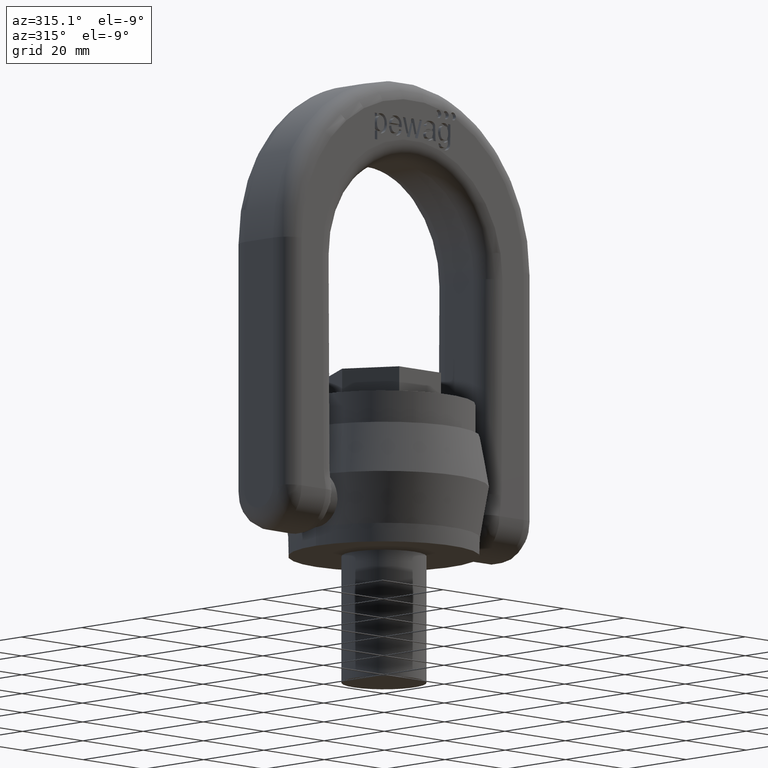
[diagram: clean part render]
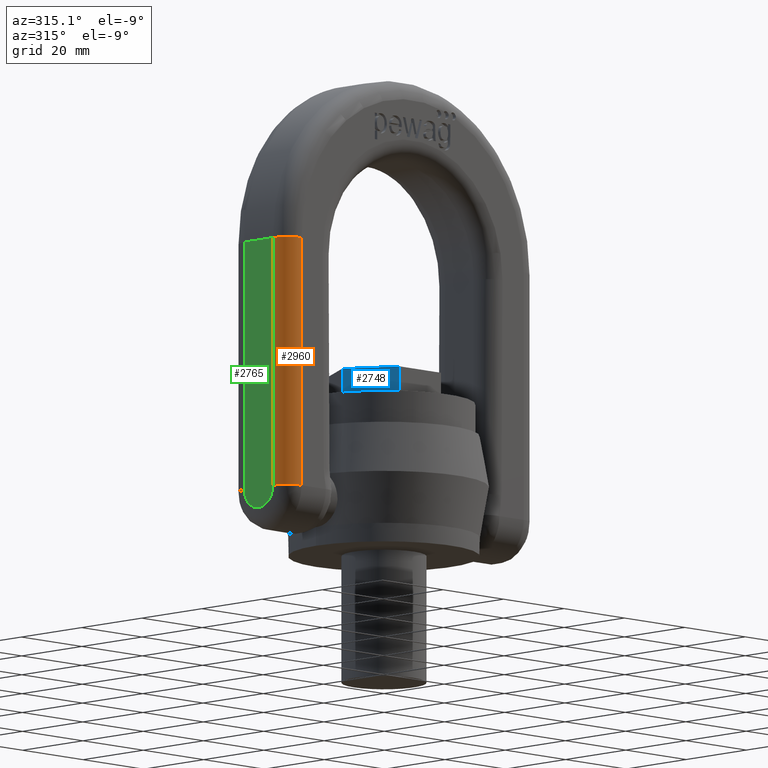
[diagram: same view with three faces highlighted in distinct colors, each labeled with its STEP entity id]
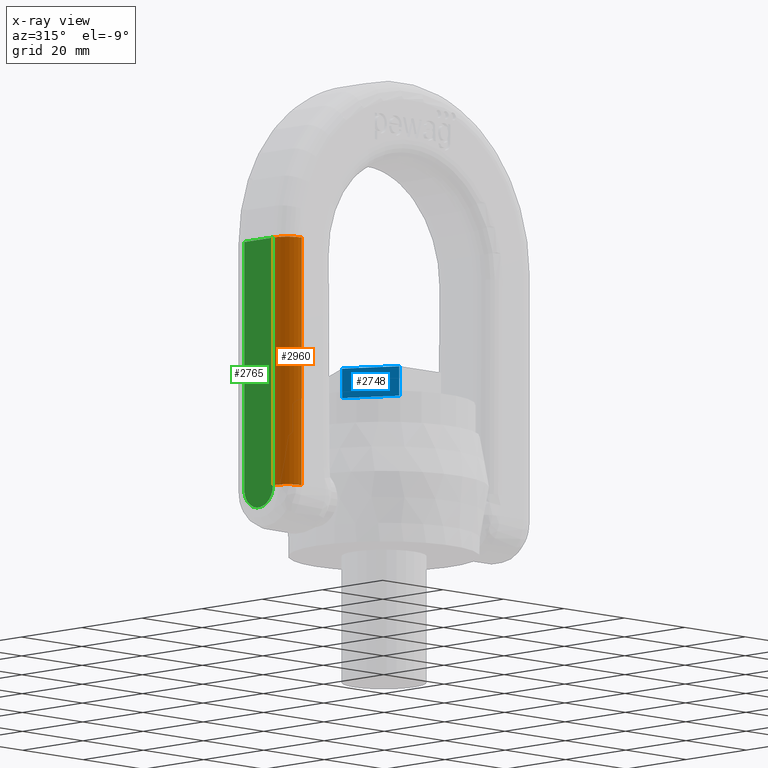
[diagram: x-ray of the same camera — body ghosted, the three highlighted faces saturated]
A machine part, auxiliary view with three faces highlighted in distinct colors.
The next image is the same camera in x-ray (body ghosted, the three faces saturated) — at least one of them is partly hidden behind the body in this view.
Their STEP definitions:

[orange] entity #2960 — the highlighted cylindrical surface (edge-blend (fillet) strip) has radius 4.75 mm, axis along (-0, 0, -1).
#1812=LINE('',#6947,#2094);
#1833=LINE('',#7054,#2115);
#2094=VECTOR('',#5951,1.);
#2115=VECTOR('',#5976,1.);
#2606=FACE_OUTER_BOUND('',#3320,.T.);
#2960=ADVANCED_FACE('',(#2606),#2993,.T.);
#2993=CYLINDRICAL_SURFACE('',#5779,4.75);
#3320=EDGE_LOOP('',(#4459,#4460,#4461,#4462));
#4459=ORIENTED_EDGE('',*,*,#5526,.T.);
#4460=ORIENTED_EDGE('',*,*,#5045,.F.);
#4461=ORIENTED_EDGE('',*,*,#5527,.F.);
#4462=ORIENTED_EDGE('',*,*,#5077,.F.);
#4582=VERTEX_POINT('',#6727);
#4631=VERTEX_POINT('',#6946);
#4660=VERTEX_POINT('',#7048);
#4663=VERTEX_POINT('',#7053);
#5045=EDGE_CURVE('',#4631,#4582,#1812,.T.);
#5077=EDGE_CURVE('',#4663,#4660,#1833,.T.);
#5526=EDGE_CURVE('',#4663,#4582,#5582,.T.);
#5527=EDGE_CURVE('',#4660,#4631,#5583,.T.);
#5582=CIRCLE('',#5777,4.75);
#5583=CIRCLE('',#5778,4.75);
#5777=AXIS2_PLACEMENT_3D('',#9436,#6532,#6533);
#5778=AXIS2_PLACEMENT_3D('',#9453,#6534,#6535);
#5779=AXIS2_PLACEMENT_3D('',#9454,#6536,#6537);
#5951=DIRECTION('',(-4.06377388222971E-16,0.,-1.));
#5976=DIRECTION('',(4.06377388222971E-16,0.,1.));
#6532=DIRECTION('',(3.65204942310907E-16,3.65204942310906E-16,1.));
#6533=DIRECTION('',(0.999999999999999,0.,-3.65204942310907E-16));
#6534=DIRECTION('',(0.,0.,1.));
#6535=DIRECTION('',(0.999999999999999,0.,0.));
#6536=DIRECTION('',(-4.06377388222971E-16,0.,-1.));
#6537=DIRECTION('',(-0.999999999999999,0.,0.));
#6727=CARTESIAN_POINT('',(-36.75,-9.5,11.7000000000001));
#6946=CARTESIAN_POINT('',(-36.75,-9.5,70.5));
#6947=CARTESIAN_POINT('',(-36.75,-9.5,68.));
#7048=CARTESIAN_POINT('',(-41.5,-4.75,70.5));
#7053=CARTESIAN_POINT('',(-41.5,-4.75,11.7000000000001));
#7054=CARTESIAN_POINT('',(-41.5,-4.75,70.5));
#9436=CARTESIAN_POINT('',(-36.75,-4.74999999999991,11.7));
#9453=CARTESIAN_POINT('',(-36.75,-4.75,70.5));
#9454=CARTESIAN_POINT('',(-36.75,-4.75,68.));

[blue] entity #2748 — the highlighted planar face has unit normal (0.866, 0.5, 0).
#1755=LINE('',#6619,#2037);
#1761=LINE('',#6632,#2043);
#1762=LINE('',#6634,#2044);
#1763=LINE('',#6636,#2045);
#2037=VECTOR('',#5842,1.);
#2043=VECTOR('',#5850,1.);
#2044=VECTOR('',#5851,1.);
#2045=VECTOR('',#5852,1.);
#2412=FACE_OUTER_BOUND('',#3080,.T.);
#2629=PLANE('',#5619);
#2748=ADVANCED_FACE('',(#2412),#2629,.F.);
#3080=EDGE_LOOP('',(#3361,#3362,#3363,#3364));
#3361=ORIENTED_EDGE('',*,*,#4951,.T.);
#3362=ORIENTED_EDGE('',*,*,#4957,.F.);
#3363=ORIENTED_EDGE('',*,*,#4958,.F.);
#3364=ORIENTED_EDGE('',*,*,#4959,.T.);
#4551=VERTEX_POINT('',#6620);
#4552=VERTEX_POINT('',#6621);
#4557=VERTEX_POINT('',#6633);
#4558=VERTEX_POINT('',#6635);
#4951=EDGE_CURVE('',#4551,#4552,#1755,.T.);
#4957=EDGE_CURVE('',#4557,#4552,#1761,.T.);
#4958=EDGE_CURVE('',#4558,#4557,#1762,.T.);
#4959=EDGE_CURVE('',#4558,#4551,#1763,.T.);
#5619=AXIS2_PLACEMENT_3D('',#6637,#5853,#5854);
#5842=DIRECTION('',(0.5,-0.866025403784439,0.));
#5850=DIRECTION('',(0.,0.,-1.));
#5851=DIRECTION('',(0.5,-0.866025403784439,0.));
#5852=DIRECTION('',(0.,0.,-1.));
#5853=DIRECTION('',(0.866025403784439,0.5,0.));
#5854=DIRECTION('',(-0.5,0.866025403784439,0.));
#6619=CARTESIAN_POINT('',(-13.856406460551,0.,36.));
#6620=CARTESIAN_POINT('',(-13.856406460551,0.,36.));
#6621=CARTESIAN_POINT('',(-6.92820323027551,-12.,36.));
#6632=CARTESIAN_POINT('',(-6.92820323027551,-12.,43.));
#6633=CARTESIAN_POINT('',(-6.92820323027551,-12.,43.));
#6634=CARTESIAN_POINT('',(-13.856406460551,0.,43.));
#6635=CARTESIAN_POINT('',(-13.856406460551,0.,43.));
#6636=CARTESIAN_POINT('',(-13.856406460551,0.,43.));
#6637=CARTESIAN_POINT('',(-13.856406460551,0.,43.));

[green] entity #2765 — the highlighted planar face has unit normal (1, 0, -0).
#1831=LINE('',#7047,#2113);
#1832=LINE('',#7050,#2114);
#1833=LINE('',#7054,#2115);
#2113=VECTOR('',#5972,1.);
#2114=VECTOR('',#5973,1.);
#2115=VECTOR('',#5976,1.);
#2427=FACE_OUTER_BOUND('',#3104,.T.);
#2644=PLANE('',#5646);
#2765=ADVANCED_FACE('',(#2427),#2644,.F.);
#3104=EDGE_LOOP('',(#3516,#3517,#3518,#3519));
#3516=ORIENTED_EDGE('',*,*,#5074,.T.);
#3517=ORIENTED_EDGE('',*,*,#5075,.T.);
#3518=ORIENTED_EDGE('',*,*,#5076,.T.);
#3519=ORIENTED_EDGE('',*,*,#5077,.T.);
#4660=VERTEX_POINT('',#7048);
#4661=VERTEX_POINT('',#7049);
#4662=VERTEX_POINT('',#7051);
#4663=VERTEX_POINT('',#7053);
#5074=EDGE_CURVE('',#4660,#4661,#1831,.T.);
#5075=EDGE_CURVE('',#4661,#4662,#1832,.T.);
#5076=EDGE_CURVE('',#4662,#4663,#5562,.T.);
#5077=EDGE_CURVE('',#4663,#4660,#1833,.T.);
#5562=CIRCLE('',#5645,4.74999999999995);
#5645=AXIS2_PLACEMENT_3D('',#7052,#5974,#5975);
#5646=AXIS2_PLACEMENT_3D('',#7055,#5977,#5978);
#5972=DIRECTION('',(0.,1.,0.));
#5973=DIRECTION('',(-4.06377388222971E-16,9.52105942957669E-31,-1.));
#5974=DIRECTION('',(-1.,0.,4.06377388222971E-16));
#5975=DIRECTION('',(0.,0.,-1.));
#5976=DIRECTION('',(4.06377388222971E-16,0.,1.));
#5977=DIRECTION('',(1.,0.,-4.06377388222971E-16));
#5978=DIRECTION('',(-4.09394740330526E-16,0.,-1.));
#7047=CARTESIAN_POINT('',(-41.5,-9.5,70.5));
#7048=CARTESIAN_POINT('',(-41.5,-4.75,70.5));
#7049=CARTESIAN_POINT('',(-41.5,4.75000000000009,70.5));
#7050=CARTESIAN_POINT('',(-41.5,4.75000000000009,70.5));
#7051=CARTESIAN_POINT('',(-41.5,4.74999999999999,11.7000000000001));
#7052=CARTESIAN_POINT('',(-41.5,4.30127820910876E-14,11.7000000000001));
#7053=CARTESIAN_POINT('',(-41.5,-4.75,11.7000000000001));
#7054=CARTESIAN_POINT('',(-41.5,-4.75,70.5));
#7055=CARTESIAN_POINT('',(-41.5,-9.5,70.5));